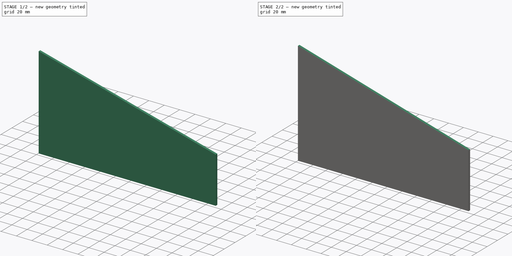
[diagram: build sequence overview — one tinted view per stage of 2, left to right]
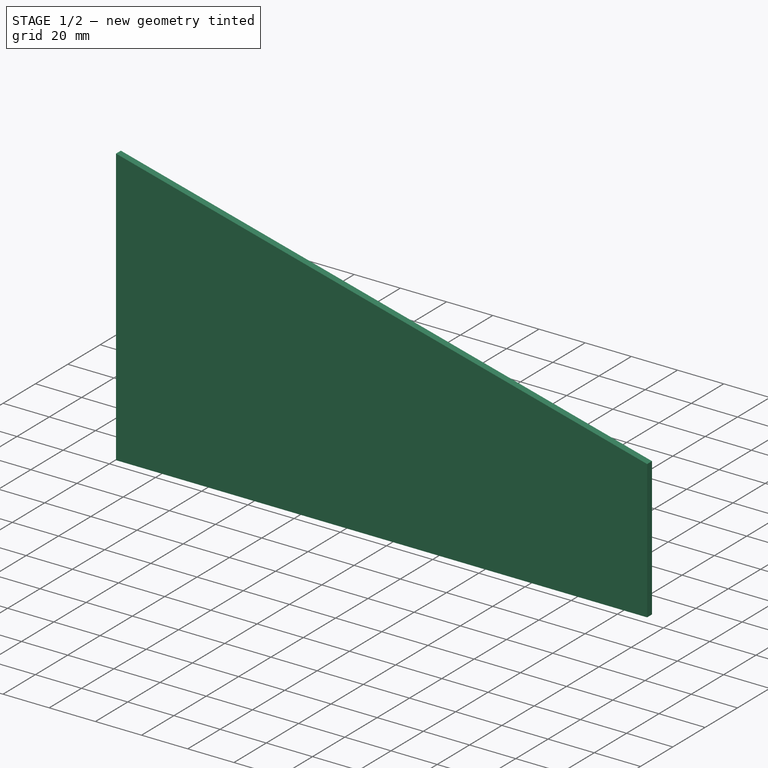
[diagram: stage 1 of 2 — iso view after this stage's code; geometry added in this stage tinted green]
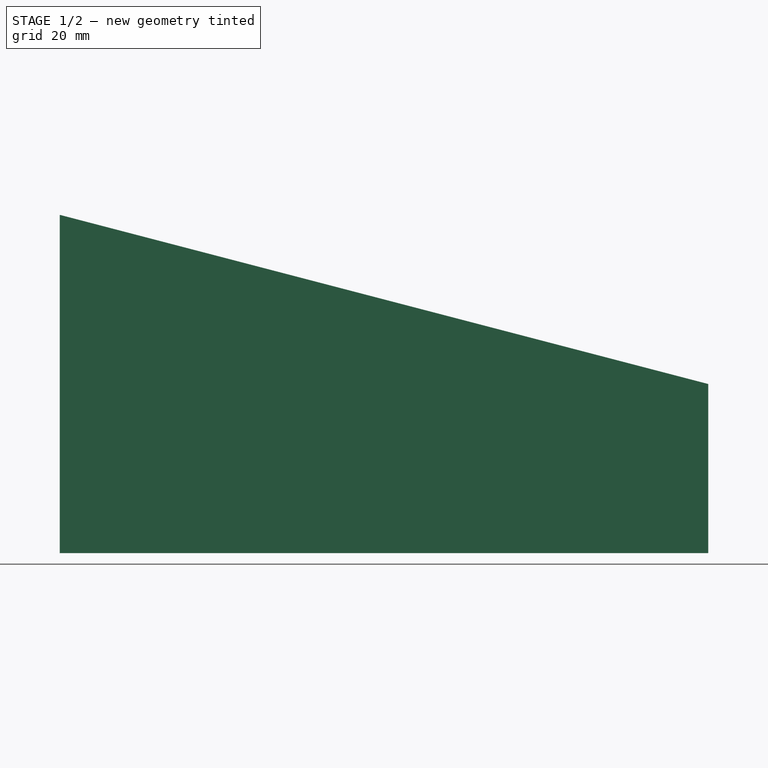
[diagram: stage 1 of 2 — front view after this stage's code; geometry added in this stage tinted green]
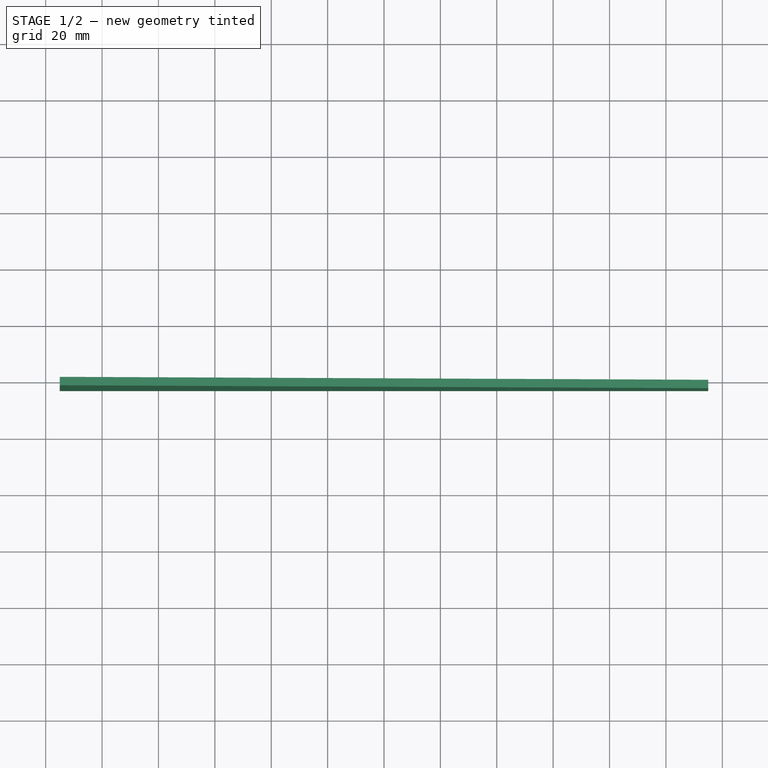
[diagram: stage 1 of 2 — top view after this stage's code; geometry added in this stage tinted green]
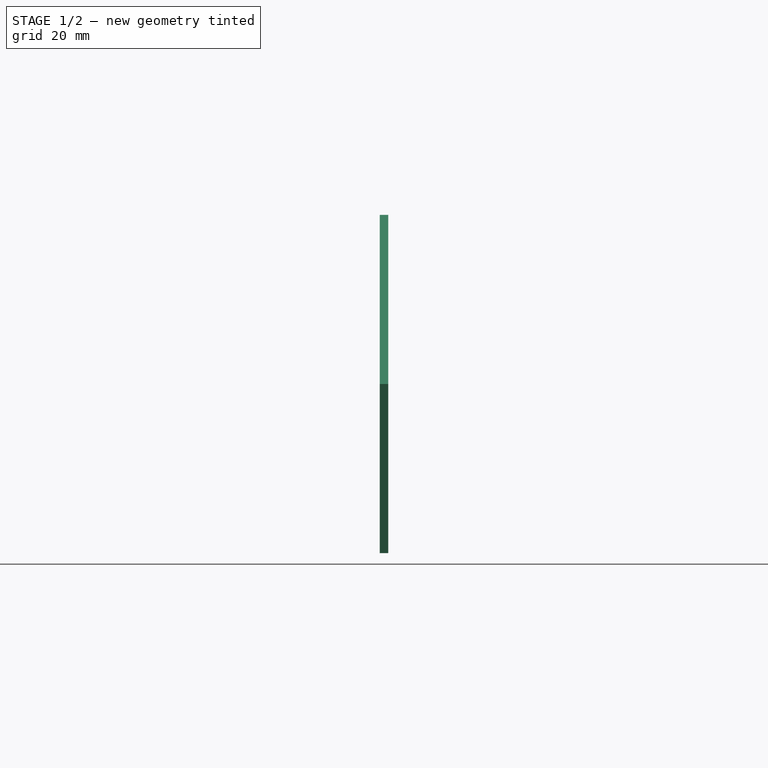
[diagram: stage 1 of 2 — right view after this stage's code; geometry added in this stage tinted green]
FCSTD DOCUMENT  (FreeCAD 0.19R)
Label: CORTES_ACRILICO
License: All rights reserved
LicenseURL: http://en.wikipedia.org/wiki/All_rights_reserved
objects: Sketcher::SketchObject×2, PartDesign::Pad×2, PartDesign::Body×2
note: 8 computed .brp shape members not serialized (recipe doc carries the construction recipe); baked Part::Feature solids carry a one-line shape summary decoded from their .brp

FEATURE [PartDesign::Body] Body  label="lateralMrampa"
  Group = -> [Sketch,Pad]
  Origin = -> Origin
  Tip = -> Pad
FEATURE [Sketcher::SketchObject] Sketch001
  FullyConstrained = true
  MapMode = 5
  Placement = pos=(0,0,0) rot=(1,0,0;1.5708rad)
  Support = -> [XZ_Plane001]
  sketch-geometry (8):
    g0: LineSegment StartX=-115 StartY=0 StartZ=0 EndX=-115 EndY=120 EndZ=0
    g1: LineSegment StartX=-115 StartY=120 StartZ=0 EndX=115 EndY=60 EndZ=0
    g2: LineSegment StartX=115 StartY=60 StartZ=0 EndX=115 EndY=0 EndZ=0
    g3: LineSegment StartX=115 StartY=0 StartZ=0 EndX=-115 EndY=0 EndZ=0
    g4: LineSegment StartX=-55 StartY=0 StartZ=0 EndX=-55 EndY=104.348 EndZ=0
    g5: LineSegment StartX=-15 StartY=0 StartZ=0 EndX=-15 EndY=93.913 EndZ=0
    g6: LineSegment StartX=35 StartY=0 StartZ=0 EndX=35 EndY=80.8696 EndZ=0
    g7: LineSegment StartX=75 StartY=0 StartZ=0 EndX=75 EndY=70.4348 EndZ=0
  constraints (27):
    c: PointOnObject(g0,g-1)
    c: Vertical(g0)
    c: Coincident(g0,g1)
    c: Coincident(g1,g2)
    c: Vertical(g2)
    c: Coincident(g2,g3)
    c: Coincident(g3,g0)
    c: DistanceY(g2,g2) = 60
    c: DistanceX(g3,g3) = 230
    c: DistanceY(g0,g0) = 120
    c: Symmetric(g0,g2,g-2)
    c: PointOnObject(g4,g3)
    c: PointOnObject(g4,g1)
    c: Vertical(g4)
    c: PointOnObject(g5,g3)
    c: PointOnObject(g5,g1)
    c: Vertical(g5)
    c: PointOnObject(g6,g3)
    c: PointOnObject(g6,g1)
    c: Vertical(g6)
    c: PointOnObject(g7,g3)
    c: PointOnObject(g7,g1)
    c: Vertical(g7)
    c: DistanceX(g0,g4) = 60
    c: DistanceX(g4,g5) = 40
    c: DistanceX(g5,g6) = 50
    c: DistanceX(g6,g7) = 40
FEATURE [PartDesign::Pad] Pad001
  Direction = (1,1,1)
  Length = 3
  Length2 = 100
  Placement = pos=(0,0,0) rot=(1,0,0;1.5708rad)
  Profile = -> Sketch001
  Type = 0
FEATURE [PartDesign::Body] Body001  label="lateralmenorrampa"
  Group = -> [Sketch001,Pad001]
  Origin = -> Origin001
  Placement = pos=(0,-50,0) rot=(0,0,1;0rad)
  Tip = -> Pad001
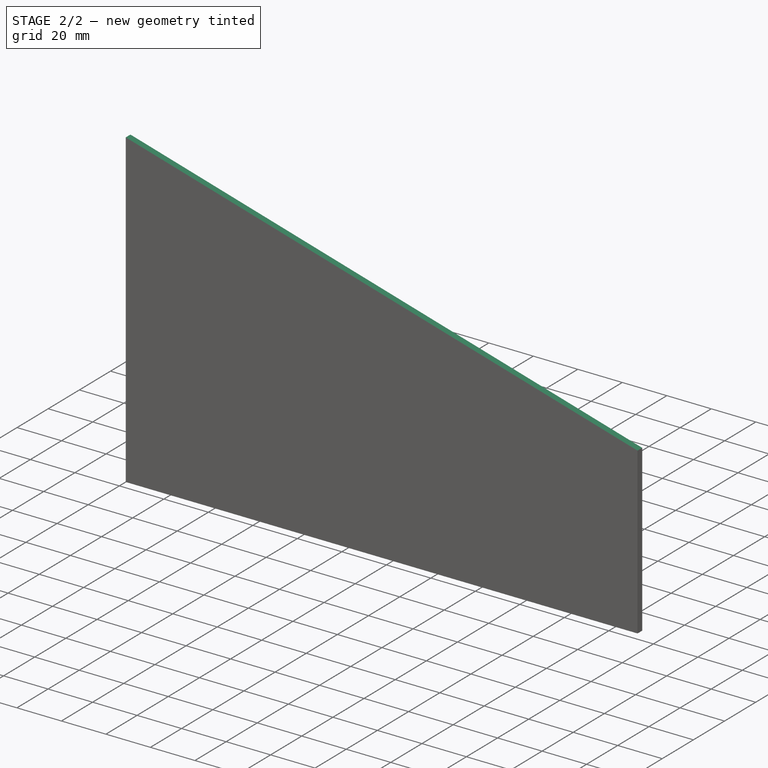
[diagram: stage 2 of 2 — iso view after this stage's code; geometry added in this stage tinted green]
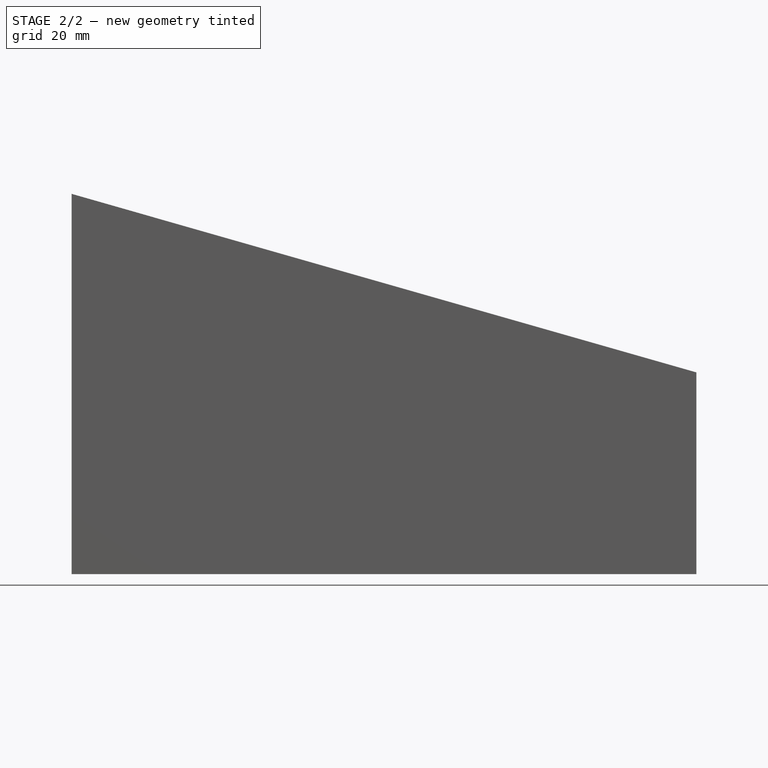
[diagram: stage 2 of 2 — front view after this stage's code; geometry added in this stage tinted green]
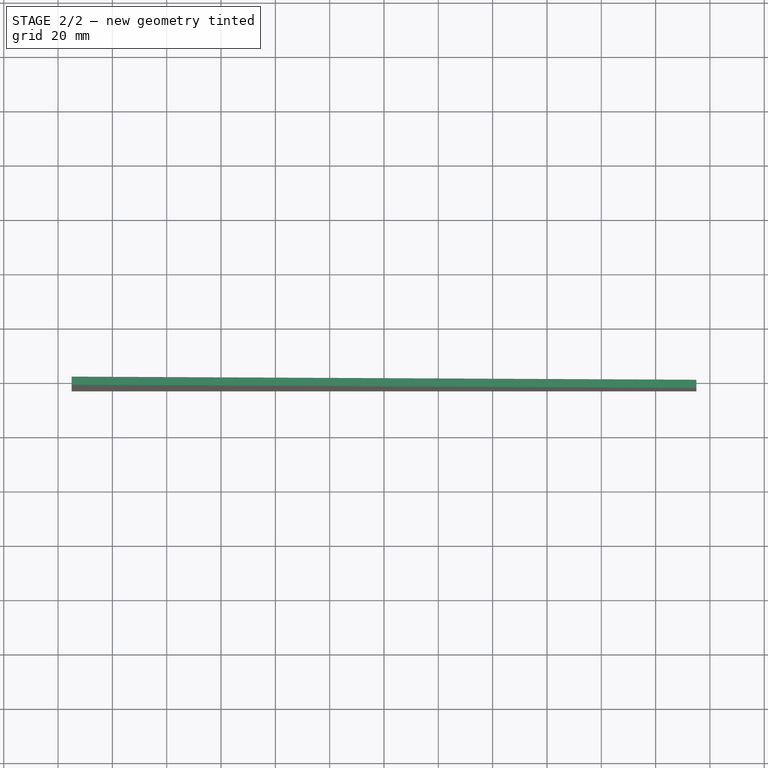
[diagram: stage 2 of 2 — top view after this stage's code; geometry added in this stage tinted green]
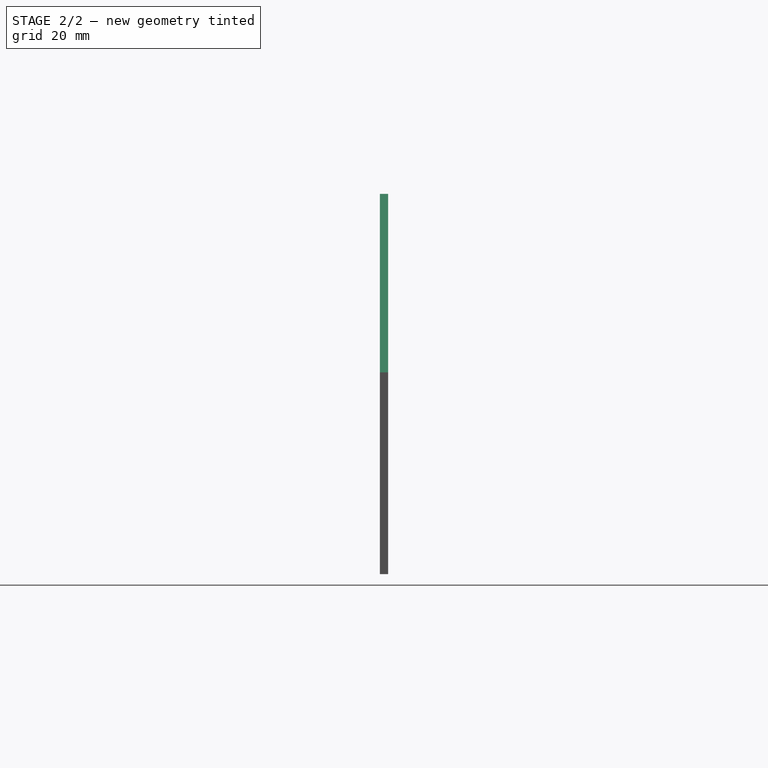
[diagram: stage 2 of 2 — right view after this stage's code; geometry added in this stage tinted green]
FEATURE [Sketcher::SketchObject] Sketch
  FullyConstrained = true
  MapMode = 5
  Placement = pos=(0,0,0) rot=(1,0,0;1.5708rad)
  Support = -> [XZ_Plane]
  sketch-geometry (8):
    g0: LineSegment StartX=-115 StartY=0 StartZ=0 EndX=-115 EndY=140 EndZ=0
    g1: LineSegment StartX=-115 StartY=140 StartZ=0 EndX=115 EndY=74.2657 EndZ=0
    g2: LineSegment StartX=115 StartY=74.2657 StartZ=0 EndX=115 EndY=0 EndZ=0
    g3: LineSegment StartX=115 StartY=0 StartZ=0 EndX=-115 EndY=0 EndZ=0
    g4: LineSegment StartX=-55 StartY=0 StartZ=0 EndX=-55 EndY=122.852 EndZ=0
    g5: LineSegment StartX=-15 StartY=0 StartZ=0 EndX=-15 EndY=111.42 EndZ=0
    g6: LineSegment StartX=35 StartY=0 StartZ=0 EndX=35 EndY=97.1298 EndZ=0
    g7: LineSegment StartX=75 StartY=0 StartZ=0 EndX=75 EndY=85.6978 EndZ=0
  constraints (31):
    c: PointOnObject(g0,g-1)
    c: Vertical(g0)
    c: Coincident(g0,g1)
    c: Coincident(g1,g2)
    c: Coincident(g2,g3)
    c: Coincident(g3,g0)
    c: Vertical(g2)
    c: DistanceX(g3,g3) = 230
    c: DistanceY(g0,g0) = 140
    c: Symmetric(g0,g2,g-2)
    c: PointOnObject(g4,g3)
    c: PointOnObject(g4,g1)
    c: Vertical(g4)
    c: PointOnObject(g5,g3)
    c: PointOnObject(g5,g1)
    c: Vertical(g5)
    c: PointOnObject(g6,g3)
    c: PointOnObject(g6,g1)
    c: Vertical(g6)
    c: PointOnObject(g7,g3)
    c: PointOnObject(g7,g1)
    c: Vertical(g7)
    c: DistanceX(g0,g4) = 60
    c: DistanceX(g4,g5) = 40
    c: DistanceX(g5,g6) = 50
    c: DistanceX(g6,g7) = 40
    c: Angle(g0,g1) = 1.29242
    c: DistanceY(g4,g4) = 122.852
    c: DistanceY(g5,g5) = 111.42
    c: DistanceY(g6,g6) = 97.1298
    c: DistanceY(g7,g7) = 85.6978
FEATURE [PartDesign::Pad] Pad
  Direction = (1,1,1)
  Length = 3
  Length2 = 100
  Placement = pos=(0,0,0) rot=(1,0,0;1.5708rad)
  Profile = -> Sketch
  Type = 0
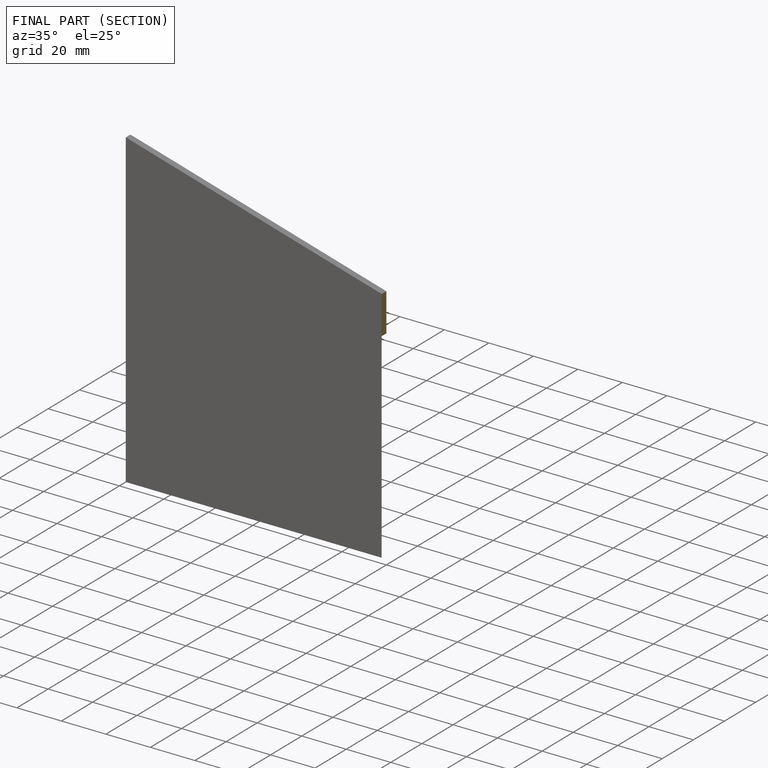
[diagram: finished part — half-section view (interior)]
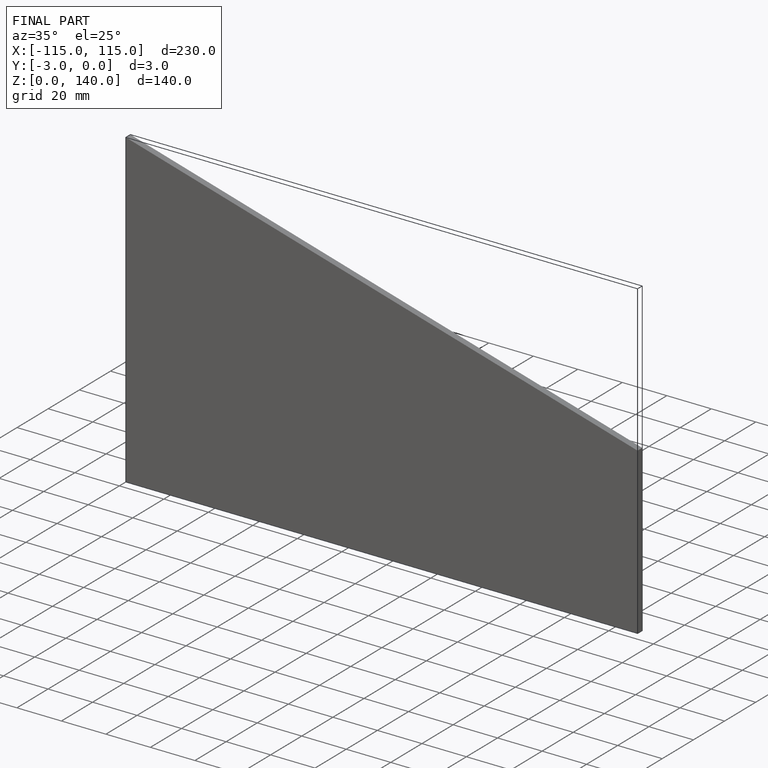
[diagram: finished part — iso view with bounding-box wireframe]
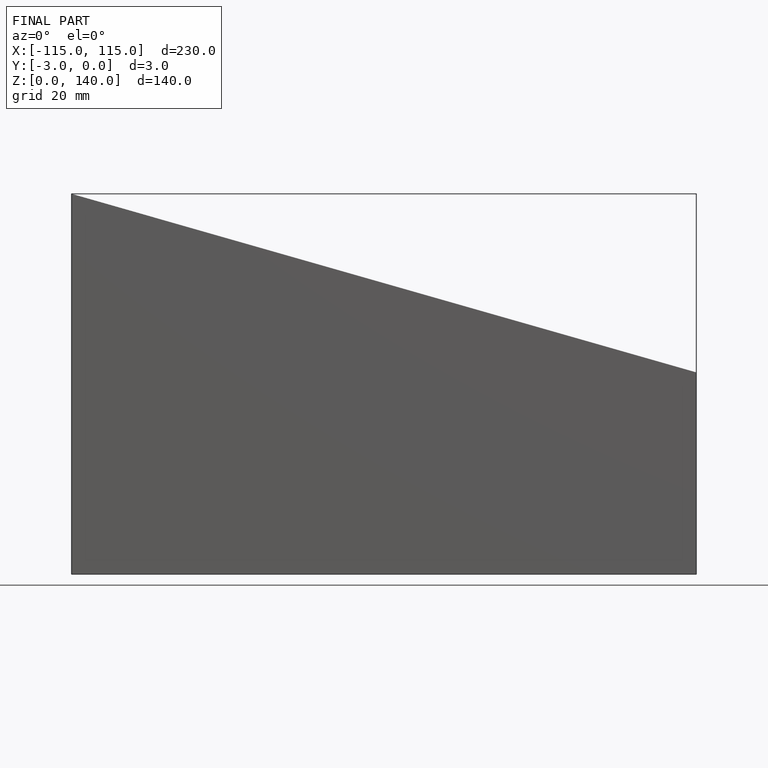
[diagram: finished part — front view with bounding-box wireframe]
